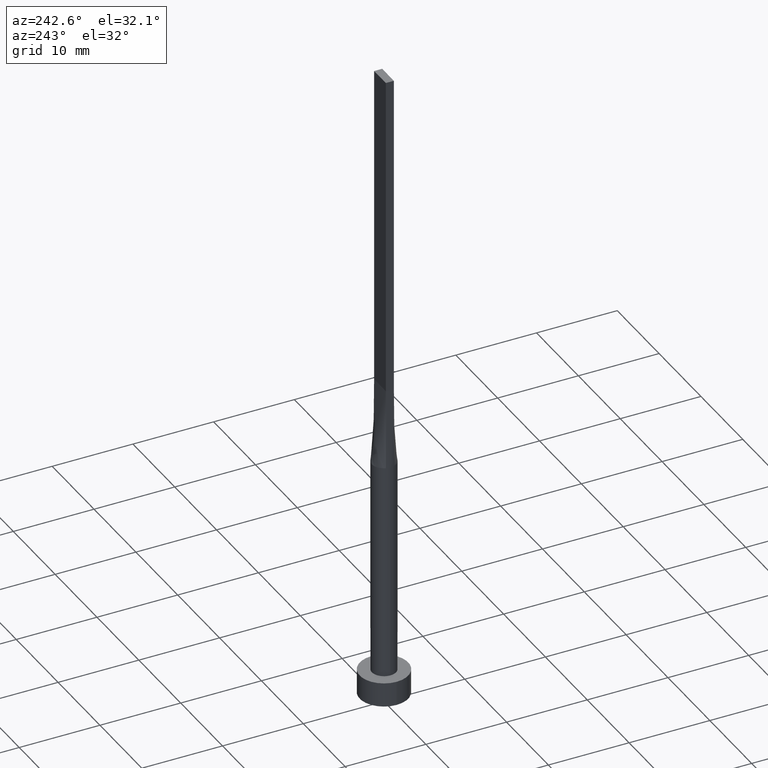
[diagram: clean part render]
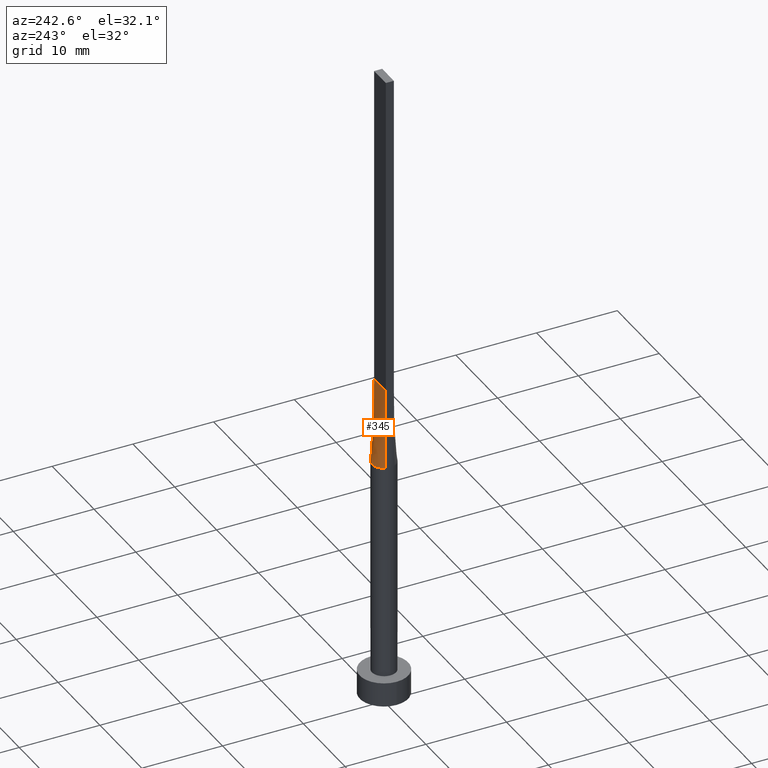
[diagram: same view with one face highlighted and labeled with its STEP entity id]
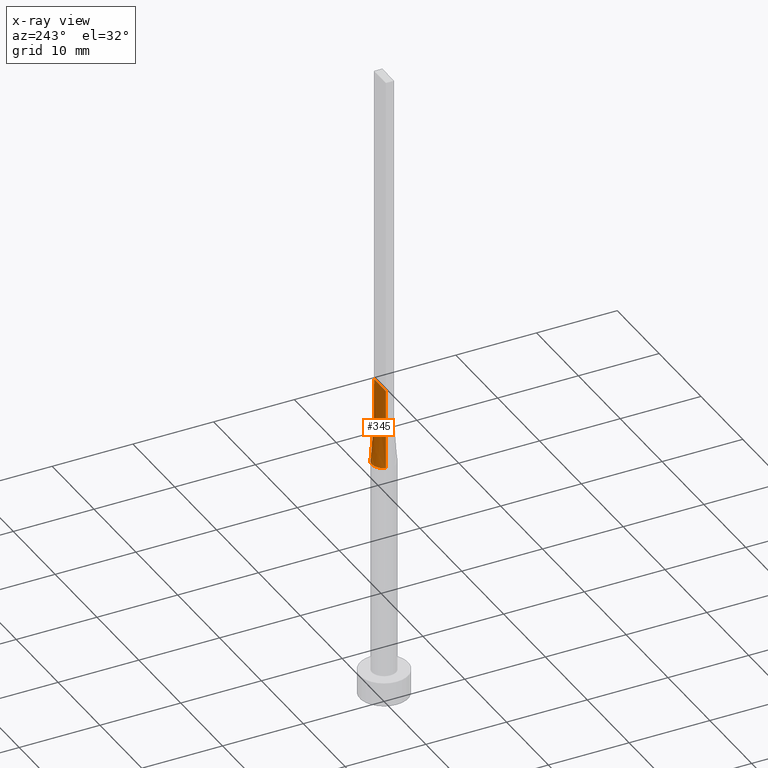
[diagram: x-ray of the same camera — body ghosted, the highlighted face saturated]
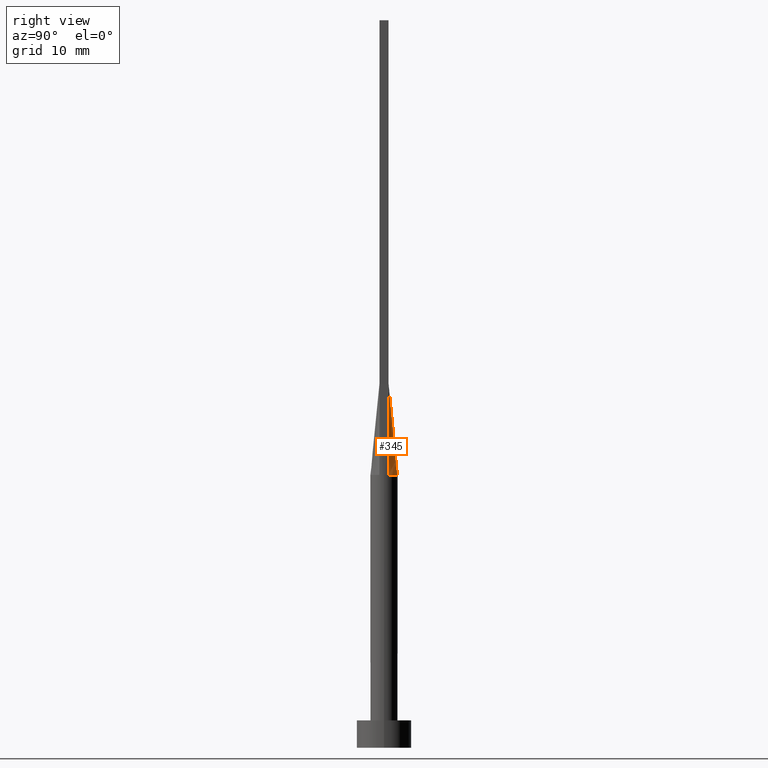
[diagram: same view with one face highlighted and labeled with its STEP entity id]
A machine part, auxiliary view. The second image highlights one B-rep face of the part: STEP entity #345.
The next image is the same camera in x-ray: the body ghosted, the highlighted face saturated — about 0% of this face is hidden behind the body in this view.
A second angle (right view) of the same face is appended — the face is thin or edge-on in the first view.
In plain terms, the highlighted face is a freeform B-spline surface patch.
Its self-contained STEP definition (entity closure, byte-faithful):
#6 = CARTESIAN_POINT ( 'NONE',  ( -1.161819288130433891, 0.9587178835757675932, 30.00000000000000711 ) ) ;
#12 = CARTESIAN_POINT ( 'NONE',  ( 1.406306433696127955, 0.5022522977486175710, 35.00000000000000000 ) ) ;
#33 = CARTESIAN_POINT ( 'NONE',  ( -1.283333333333332993, 0.5000000000000002220, 39.99999999999999289 ) ) ;
#38 = EDGE_LOOP ( 'NONE', ( #471, #311, #514, #325 ) ) ;
#51 = CARTESIAN_POINT ( 'NONE',  ( -1.373020107211261331, 0.6153643240040217455, 30.00000000000000355 ) ) ;
#61 = CARTESIAN_POINT ( 'NONE',  ( 1.161819288130433891, 0.9587178835757675932, 30.00000000000000355 ) ) ;
#66 = EDGE_CURVE ( 'NONE', #486, #107, #326, .T. ) ;
#77 = EDGE_CURVE ( 'NONE', #486, #332, #555, .T. ) ;
#84 = FACE_OUTER_BOUND ( 'NONE', #38, .T. ) ;
#85 = CARTESIAN_POINT ( 'NONE',  ( 1.166666666666666963, 0.5000000000000002220, 39.99999999999999289 ) ) ;
#88 = CARTESIAN_POINT ( 'NONE',  ( -0.4666666666666647867, 0.5000000000000002220, 39.99999999999999289 ) ) ;
#90 = CARTESIAN_POINT ( 'NONE',  ( 1.399999999999999689, 0.5000000000000002220, 40.00000000000000000 ) ) ;
#103 = CARTESIAN_POINT ( 'NONE',  ( -0.1761797990592590402, 1.499999999999999778, 30.00000000000000000 ) ) ;
#107 = VERTEX_POINT ( 'NONE', #472 ) ;
#108 = VECTOR ( 'NONE', #515, 1000.000000000000000 ) ;
#109 = CARTESIAN_POINT ( 'NONE',  ( -0.6732153042498576490, 1.351288176626052495, 30.00000000000000355 ) ) ;
#116 = CARTESIAN_POINT ( 'NONE',  ( -1.399999999999999689, 0.5000000000000002220, 40.00000000000000000 ) ) ;
#123 = EDGE_CURVE ( 'NONE', #332, #335, #150, .T. ) ;
#127 = CARTESIAN_POINT ( 'NONE',  ( -0.9333333333333320159, 0.5000000000000002220, 39.99999999999999289 ) ) ;
#132 = CARTESIAN_POINT ( 'NONE',  ( 0.8166666666666677621, 0.5000000000000002220, 39.99999999999999289 ) ) ;
#133 = CARTESIAN_POINT ( 'NONE',  ( -0.2333333333333313386, 0.5000000000000002220, 39.99999999999999289 ) ) ;
#136 = CARTESIAN_POINT ( 'NONE',  ( 0.8182264876570948253, 1.266912425724810110, 29.99999999999999645 ) ) ;
#138 = CARTESIAN_POINT ( 'NONE',  ( -0.5833333333333314830, 0.5000000000000002220, 39.99999999999999289 ) ) ;
#150 = LINE ( 'NONE', #333, #108 ) ;
#180 = CARTESIAN_POINT ( 'NONE',  ( 1.283333333333333437, 0.5000000000000002220, 39.99999999999999289 ) ) ;
#194 = CARTESIAN_POINT ( 'NONE',  ( -1.412646936588081381, 0.5045169241220069933, 30.00000000000000000 ) ) ;
#214 = CARTESIAN_POINT ( 'NONE',  ( -1.316960349798174557, 0.7311494208568980468, 30.00000000000000355 ) ) ;
#219 = CARTESIAN_POINT ( 'NONE',  ( 0.9333333333333342363, 0.5000000000000002220, 39.99999999999999289 ) ) ;
#229 = CARTESIAN_POINT ( 'NONE',  ( 1.399999999999999689, 0.5000000000000002220, 40.00000000000000000 ) ) ;
#236 = CARTESIAN_POINT ( 'NONE',  ( 1.316960349798174557, 0.7311494208568982689, 30.00000000000001421 ) ) ;
#241 = CARTESIAN_POINT ( 'NONE',  ( 0.3520402531411749303, 1.468082505288407447, 30.00000000000001066 ) ) ;
#259 = VECTOR ( 'NONE', #547, 1000.000000000000114 ) ;
#265 = CARTESIAN_POINT ( 'NONE',  ( 0.5833333333333348136, 0.5000000000000002220, 39.99999999999999289 ) ) ;
#272 = CARTESIAN_POINT ( 'NONE',  ( -1.399999999999999689, 0.5000000000000002220, 40.00000000000000000 ) ) ;
#273 = CARTESIAN_POINT ( 'NONE',  ( 1.412628473635865189, 0.5045102250504699404, 30.00000000000000000 ) ) ;
#280 = CARTESIAN_POINT ( 'NONE',  ( 0.6732153042498577600, 1.351288176626052717, 30.00000000000000711 ) ) ;
#285 = CARTESIAN_POINT ( 'NONE',  ( 1.062433464748102407, 1.070418989248103525, 30.00000000000000355 ) ) ;
#289 = CARTESIAN_POINT ( 'NONE',  ( -1.316960349798174557, 0.7311494208568980468, 30.00000000000000355 ) ) ;
#309 = CARTESIAN_POINT ( 'NONE',  ( -0.8166666666666652086, 0.5000000000000002220, 39.99999999999999289 ) ) ;
#311 = ORIENTED_EDGE ( 'NONE', *, *, #541, .T. ) ;
#318 = CARTESIAN_POINT ( 'NONE',  ( 1.316960349798174557, 0.7311494208568982689, 30.00000000000001421 ) ) ;
#320 = LINE ( 'NONE', #508, #424 ) ;
#321 = CARTESIAN_POINT ( 'NONE',  ( 0.6732153042498577600, 1.351288176626052717, 30.00000000000000711 ) ) ;
#325 = ORIENTED_EDGE ( 'NONE', *, *, #77, .F. ) ;
#326 = B_SPLINE_CURVE_WITH_KNOTS ( 'NONE', 3,
 ( #273, #330, #236, #61, #285, #511, #280, #241, #380, #103, #372, #109, #417, #457, #6, #289, #51, #194 ),
 .UNSPECIFIED., .F., .F.,
 ( 4, 2, 2, 2, 2, 2, 2, 2, 4 ),
 ( 0.000000000000000000, 0.1250000000000000000, 0.2500000000000000000, 0.3750000000000000000, 0.5000000000000000000, 0.6250000000000000000, 0.7500000000000000000, 0.8750000000000000000, 1.000000000000000000 ),
 .UNSPECIFIED. ) ;
#330 = CARTESIAN_POINT ( 'NONE',  ( 1.373020107211261109, 0.6153643240040217455, 29.99999999999999645 ) ) ;
#332 = VERTEX_POINT ( 'NONE', #90 ) ;
#333 = CARTESIAN_POINT ( 'NONE',  ( -1.399999999999999689, 0.5000000000000002220, 40.00000000000000000 ) ) ;
#335 = VERTEX_POINT ( 'NONE', #272 ) ;
#345 = ADVANCED_FACE ( 'NONE', ( #84 ), #346, .T. ) ;
#346 = B_SPLINE_SURFACE_WITH_KNOTS ( 'NONE', 3, 1, ( 
 ( #408, #229 ),
 ( #404, #180 ),
 ( #318, #85 ),
 ( #370, #219 ),
 ( #445, #132 ),
 ( #136, #265 ),
 ( #321, #545 ),
 ( #400, #502 ),
 ( #448, #577 ),
 ( #579, #538 ),
 ( #499, #133 ),
 ( #496, #88 ),
 ( #580, #138 ),
 ( #522, #309 ),
 ( #489, #127 ),
 ( #214, #572 ),
 ( #475, #33 ),
 ( #425, #116 ) ),
 .UNSPECIFIED., .F., .F., .F.,
 ( 4, 2, 2, 2, 2, 2, 2, 2, 4 ),
 ( 2, 2 ),
 ( 0.000000000000000000, 0.1250000000000000000, 0.2500000000000000000, 0.3750000000000000000, 0.5000000000000000000, 0.6250000000000000000, 0.7500000000000000000, 0.8750000000000000000, 1.000000000000000000 ),
 ( 0.000000000000000000, 1.000000000000000000 ),
 .UNSPECIFIED. ) ;
#370 = CARTESIAN_POINT ( 'NONE',  ( 1.161819288130433891, 0.9587178835757675932, 30.00000000000000355 ) ) ;
#372 = CARTESIAN_POINT ( 'NONE',  ( -0.3520402531411749858, 1.468082505288407891, 30.00000000000000355 ) ) ;
#380 = CARTESIAN_POINT ( 'NONE',  ( 0.1761797990592590679, 1.500000000000000222, 30.00000000000000000 ) ) ;
#400 = CARTESIAN_POINT ( 'NONE',  ( 0.3520402531411749303, 1.468082505288407447, 30.00000000000001066 ) ) ;
#404 = CARTESIAN_POINT ( 'NONE',  ( 1.373020107211261109, 0.6153643240040217455, 29.99999999999999645 ) ) ;
#408 = CARTESIAN_POINT ( 'NONE',  ( 1.412612867392256444, 0.5045045954972344759, 30.00000000000000000 ) ) ;
#417 = CARTESIAN_POINT ( 'NONE',  ( -0.8182264876570950474, 1.266912425724810554, 30.00000000000000000 ) ) ;
#424 = VECTOR ( 'NONE', #498, 1000.000000000000114 ) ;
#425 = CARTESIAN_POINT ( 'NONE',  ( -1.412612867392256444, 0.5045045954972340319, 30.00000000000000000 ) ) ;
#445 = CARTESIAN_POINT ( 'NONE',  ( 1.062433464748102407, 1.070418989248103525, 30.00000000000000355 ) ) ;
#448 = CARTESIAN_POINT ( 'NONE',  ( 0.1761797990592590679, 1.500000000000000222, 30.00000000000000000 ) ) ;
#457 = CARTESIAN_POINT ( 'NONE',  ( -1.062433464748102407, 1.070418989248103525, 30.00000000000001066 ) ) ;
#471 = ORIENTED_EDGE ( 'NONE', *, *, #66, .T. ) ;
#472 = CARTESIAN_POINT ( 'NONE',  ( -1.412646936588081381, 0.5045169241220069933, 30.00000000000000000 ) ) ;
#475 = CARTESIAN_POINT ( 'NONE',  ( -1.373020107211261331, 0.6153643240040217455, 30.00000000000000355 ) ) ;
#486 = VERTEX_POINT ( 'NONE', #544 ) ;
#489 = CARTESIAN_POINT ( 'NONE',  ( -1.161819288130433891, 0.9587178835757675932, 30.00000000000000711 ) ) ;
#496 = CARTESIAN_POINT ( 'NONE',  ( -0.6732153042498576490, 1.351288176626052495, 30.00000000000000355 ) ) ;
#498 = DIRECTION ( 'NONE',  ( 0.001261285608005575801, -0.0004504591457162011002, 0.9999991031221843185 ) ) ;
#499 = CARTESIAN_POINT ( 'NONE',  ( -0.3520402531411749858, 1.468082505288407891, 30.00000000000000355 ) ) ;
#502 = CARTESIAN_POINT ( 'NONE',  ( 0.2333333333333351967, 0.5000000000000002220, 39.99999999999999289 ) ) ;
#508 = CARTESIAN_POINT ( 'NONE',  ( -1.406306433696127955, 0.5022522977486171269, 35.00000000000000000 ) ) ;
#511 = CARTESIAN_POINT ( 'NONE',  ( 0.8182264876570948253, 1.266912425724810110, 29.99999999999999645 ) ) ;
#514 = ORIENTED_EDGE ( 'NONE', *, *, #123, .F. ) ;
#515 = DIRECTION ( 'NONE',  ( -1.000000000000000000, -0.000000000000000000, -0.000000000000000000 ) ) ;
#522 = CARTESIAN_POINT ( 'NONE',  ( -1.062433464748102407, 1.070418989248103525, 30.00000000000001066 ) ) ;
#538 = CARTESIAN_POINT ( 'NONE',  ( -0.1166666666666646840, 0.5000000000000002220, 39.99999999999999289 ) ) ;
#541 = EDGE_CURVE ( 'NONE', #107, #335, #320, .T. ) ;
#544 = CARTESIAN_POINT ( 'NONE',  ( 1.412628473635865189, 0.5045102250504699404, 30.00000000000000000 ) ) ;
#545 = CARTESIAN_POINT ( 'NONE',  ( 0.4666666666666682839, 0.5000000000000002220, 39.99999999999999289 ) ) ;
#547 = DIRECTION ( 'NONE',  ( -0.001261285608005553900, -0.0004504591457162878364, 0.9999991031221843185 ) ) ;
#555 = LINE ( 'NONE', #12, #259 ) ;
#572 = CARTESIAN_POINT ( 'NONE',  ( -1.166666666666665853, 0.5000000000000002220, 39.99999999999999289 ) ) ;
#577 = CARTESIAN_POINT ( 'NONE',  ( 0.1166666666666685975, 0.5000000000000002220, 40.00000000000000000 ) ) ;
#579 = CARTESIAN_POINT ( 'NONE',  ( -0.1761797990592590402, 1.499999999999999778, 30.00000000000000000 ) ) ;
#580 = CARTESIAN_POINT ( 'NONE',  ( -0.8182264876570950474, 1.266912425724810554, 30.00000000000000000 ) ) ;